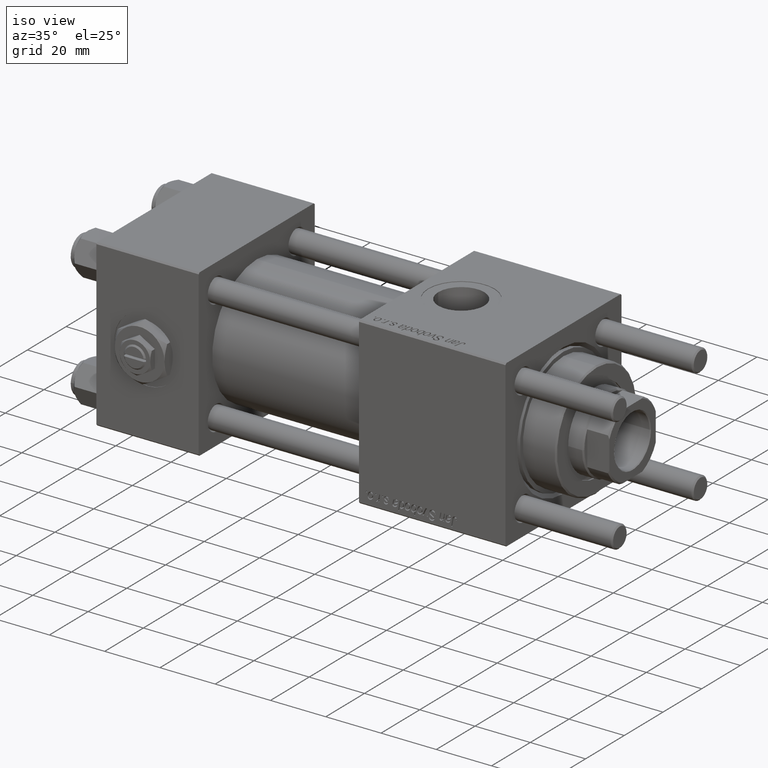
[diagram: clean part render]
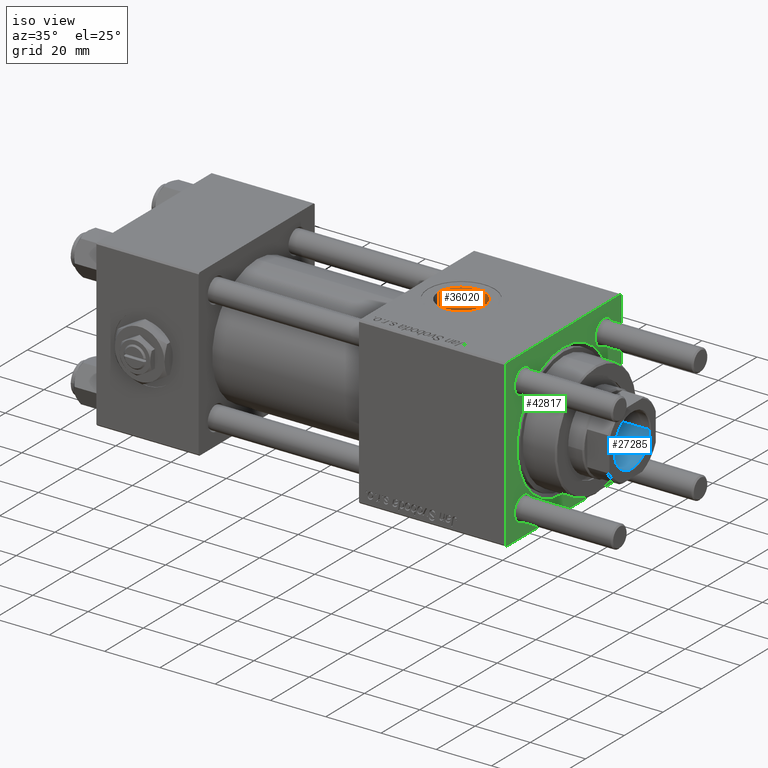
[diagram: same view with three faces highlighted in distinct colors, each labeled with its STEP entity id]
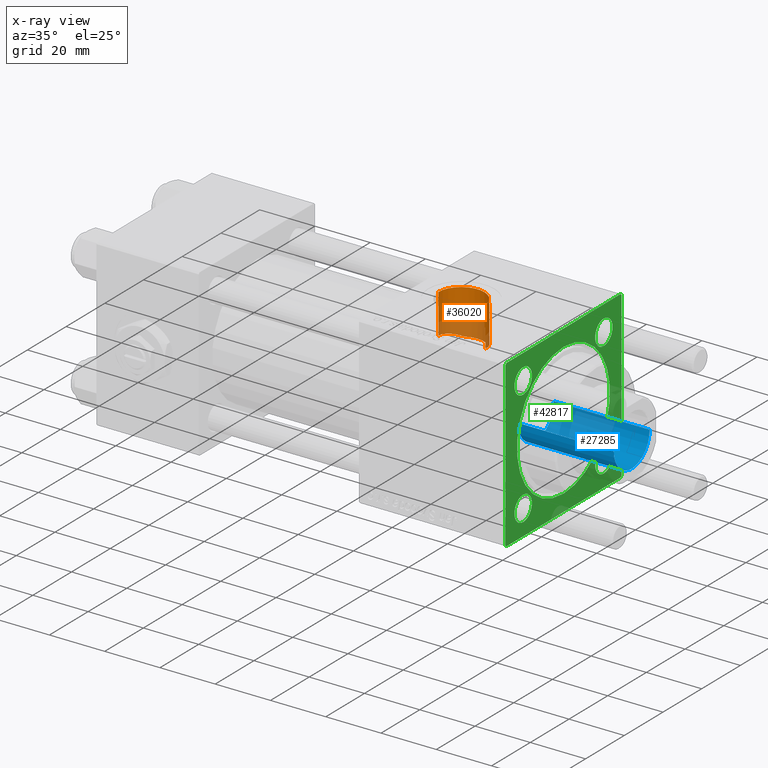
[diagram: x-ray of the same camera — body ghosted, the three highlighted faces saturated]
A machine part, iso view with three faces highlighted in distinct colors.
The next image is the same camera in x-ray (body ghosted, the three faces saturated) — at least one of them is partly hidden behind the body in this view.
Their STEP definitions:

[orange] entity #36020 — the highlighted cylindrical surface (edge-blend (fillet) strip) has radius 8.33 mm, axis along (0, 0, -1).
#128 = ORIENTED_EDGE ( 'NONE', *, *, #34558, .T. ) ;
#1865 = CARTESIAN_POINT ( 'NONE',  ( 103.2381405738433386, 3.047811366702672498, 15.20162253944664776 ) ) ;
#4041 = LINE ( 'NONE', #27521, #38784 ) ;
#5233 = CARTESIAN_POINT ( 'NONE',  ( 102.8890011916722216, 1.937150640225431042, 15.38313654488691284 ) ) ;
#6387 = LINE ( 'NONE', #19784, #10003 ) ;
#6674 = CARTESIAN_POINT ( 'NONE',  ( 102.6700000000000017, -3.469446951953613794E-15, 29.79999999999999716 ) ) ;
#6937 = CYLINDRICAL_SURFACE ( 'NONE', #35250, 8.330000000000003624 ) ;
#7400 = ORIENTED_EDGE ( 'NONE', *, *, #12505, .T. ) ;
#7505 = CARTESIAN_POINT ( 'NONE',  ( 104.3389503160342855, 5.060146834073014688, 14.66641001412193823 ) ) ;
#7909 = CARTESIAN_POINT ( 'NONE',  ( 115.9653705457623687, 6.724419165648845009, 13.97437896738289176 ) ) ;
#7979 = VERTEX_POINT ( 'NONE', #53596 ) ;
#8198 = CARTESIAN_POINT ( 'NONE',  ( 118.2534000047988201, 4.111271999610754513, 14.94835106229168176 ) ) ;
#8400 = VERTEX_POINT ( 'NONE', #32930 ) ;
#8486 = CARTESIAN_POINT ( 'NONE',  ( 118.7201712771788209, 3.148968827299039930, 15.18062598671783192 ) ) ;
#9775 = CARTESIAN_POINT ( 'NONE',  ( 102.6699999999996180, -2.713081726590588117E-14, 15.50000000000020428 ) ) ;
#10003 = VECTOR ( 'NONE', #37940, 1000.000000000000000 ) ;
#10063 = VERTEX_POINT ( 'NONE', #6674 ) ;
#11018 = DIRECTION ( 'NONE',  ( 0.000000000000000000, 0.000000000000000000, 1.000000000000000000 ) ) ;
#12505 = EDGE_CURVE ( 'NONE', #18631, #7979, #51632, .T. ) ;
#13952 = EDGE_LOOP ( 'NONE', ( #24610, #20647, #43249, #7400, #41176, #128, #32339, #32332 ) ) ;
#16294 = AXIS2_PLACEMENT_3D ( 'NONE', #44398, #53056, #35193 ) ;
#16744 = VERTEX_POINT ( 'NONE', #39771 ) ;
#16825 = CARTESIAN_POINT ( 'NONE',  ( 114.7548501967454939, 7.435724578008534813, 13.59999999999999076 ) ) ;
#17005 = CARTESIAN_POINT ( 'NONE',  ( 103.7310443908884849, 4.086272943823808568, 14.95550201764395837 ) ) ;
#17029 = EDGE_CURVE ( 'NONE', #10063, #18631, #6387, .T. ) ;
#17411 = CARTESIAN_POINT ( 'NONE',  ( 119.2378105529334107, 1.437110862293704328, 15.45056201154794806 ) ) ;
#18151 = EDGE_CURVE ( 'NONE', #26344, #35064, #20025, .T. ) ;
#18631 = VERTEX_POINT ( 'NONE', #9775 ) ;
#19784 = CARTESIAN_POINT ( 'NONE',  ( 102.6700000000000017, -3.469446951953613794E-15, 52.79999999999999716 ) ) ;
#19819 = EDGE_CURVE ( 'NONE', #28530, #7979, #55736, .T. ) ;
#20025 = LINE ( 'NONE', #51572, #30048 ) ;
#20647 = ORIENTED_EDGE ( 'NONE', *, *, #52566, .F. ) ;
#21044 = CARTESIAN_POINT ( 'NONE',  ( 119.2999999999999829, 0.7063285354565354002, 22.48891060056044466 ) ) ;
#21780 = CARTESIAN_POINT ( 'NONE',  ( 104.8202029067652745, 5.636575315625639071, 14.44950328828300279 ) ) ;
#21885 = CARTESIAN_POINT ( 'NONE',  ( 118.5762318573482190, 3.480672338514595232, 15.10763638059241742 ) ) ;
#23391 = CARTESIAN_POINT ( 'NONE',  ( 103.1053547801138848, 2.686155454129544484, 15.27016736770789862 ) ) ;
#23729 = CARTESIAN_POINT ( 'NONE',  ( 119.3200361445783102, 0.4708856903043578401, 22.49630535626710781 ) ) ;
#24396 = B_SPLINE_CURVE_WITH_KNOTS ( 'NONE', 3,
 ( #55878, #23729, #33226, #56482 ),
 .UNSPECIFIED., .F., .F.,
 ( 4, 4 ),
 ( 0.000000000000000000, 0.0007063285354565328363 ),
 .UNSPECIFIED. ) ;
#24610 = ORIENTED_EDGE ( 'NONE', *, *, #25623, .F. ) ;
#25380 = CARTESIAN_POINT ( 'NONE',  ( 103.5505958705756484, 3.747264868531968940, 15.04448363899141938 ) ) ;
#25623 = EDGE_CURVE ( 'NONE', #16744, #8400, #4041, .T. ) ;
#25666 = CARTESIAN_POINT ( 'NONE',  ( 105.6573382553999210, 6.402176101401404473, 14.11876137656380870 ) ) ;
#26066 = CARTESIAN_POINT ( 'NONE',  ( 115.3902205841902457, 7.114878828643538711, 13.77542063413991080 ) ) ;
#26344 = VERTEX_POINT ( 'NONE', #21044 ) ;
#26476 = B_SPLINE_CURVE_WITH_KNOTS ( 'NONE', 3,
 ( #16825, #26066, #7909, #40335, #53436, #34991, #30822, #48970, #8198, #21885, #8486, #40032, #17411, #35862 ),
 .UNSPECIFIED., .F., .F.,
 ( 4, 2, 2, 2, 2, 2, 4 ),
 ( 1.762687342693953287E-17, 0.002167183143396243707, 0.003250774715094356237, 0.004334366286792468333, 0.005417957858490579995, 0.006501549430188692524, 0.008668732573584917583 ),
 .UNSPECIFIED. ) ;
#27521 = CARTESIAN_POINT ( 'NONE',  ( 119.3300000000000125, -2.449316168263869032E-15, 52.79999999999999716 ) ) ;
#28530 = VERTEX_POINT ( 'NONE', #42710 ) ;
#29553 = CARTESIAN_POINT ( 'NONE',  ( 111.0000000000000000, -3.469446951953613794E-15, 52.79999999999999716 ) ) ;
#30048 = VECTOR ( 'NONE', #43515, 1000.000000000000000 ) ;
#30091 = AXIS2_PLACEMENT_3D ( 'NONE', #57959, #11018, #37807 ) ;
#30822 = CARTESIAN_POINT ( 'NONE',  ( 117.6798436837576389, 4.989036688639971295, 14.67824946145068310 ) ) ;
#31008 = CARTESIAN_POINT ( 'NONE',  ( 106.5763594891585910, 7.068460345354880658, 13.79652937211603003 ) ) ;
#32332 = ORIENTED_EDGE ( 'NONE', *, *, #43291, .T. ) ;
#32339 = ORIENTED_EDGE ( 'NONE', *, *, #18151, .F. ) ;
#32930 = CARTESIAN_POINT ( 'NONE',  ( 119.3300000000000125, 2.755455270027974659E-15, 22.50000000000000355 ) ) ;
#33226 = CARTESIAN_POINT ( 'NONE',  ( 119.3300000000000125, 0.2354428451521802246, 22.50000000000000355 ) ) ;
#33701 = CARTESIAN_POINT ( 'NONE',  ( 102.6699999999996180, -2.713081726590588117E-14, 15.50000000000020428 ) ) ;
#34558 = EDGE_CURVE ( 'NONE', #28530, #35064, #26476, .T. ) ;
#34991 = CARTESIAN_POINT ( 'NONE',  ( 117.4652904211442745, 5.264203456503698142, 14.58139219426319322 ) ) ;
#35064 = VERTEX_POINT ( 'NONE', #47359 ) ;
#35176 = CARTESIAN_POINT ( 'NONE',  ( 105.9544709984673005, 6.638852620574125396, 14.00831860901981685 ) ) ;
#35193 = DIRECTION ( 'NONE',  ( 1.000000000000000000, 0.000000000000000000, 0.000000000000000000 ) ) ;
#35250 = AXIS2_PLACEMENT_3D ( 'NONE', #29553, #47708, #42032 ) ;
#35862 = CARTESIAN_POINT ( 'NONE',  ( 119.2999999999999545, 0.7063285354568809016, 15.48389808801386103 ) ) ;
#36020 = ADVANCED_FACE ( 'NONE', ( #37594 ), #6937, .F. ) ;
#37594 = FACE_OUTER_BOUND ( 'NONE', #13952, .T. ) ;
#37807 = DIRECTION ( 'NONE',  ( 1.000000000000000000, 0.000000000000000000, 0.000000000000000000 ) ) ;
#37940 = DIRECTION ( 'NONE',  ( 0.000000000000000000, 0.000000000000000000, -1.000000000000000000 ) ) ;
#38784 = VECTOR ( 'NONE', #45378, 1000.000000000000000 ) ;
#39640 = CARTESIAN_POINT ( 'NONE',  ( 107.2451498032545061, 7.435724578008534813, 13.59999999999999076 ) ) ;
#39771 = CARTESIAN_POINT ( 'NONE',  ( 119.3300000000000125, -2.449316168263869821E-15, 29.79999999999999716 ) ) ;
#39924 = CARTESIAN_POINT ( 'NONE',  ( 106.9024469684808594, 7.262668436259995808, 13.69461748577755777 ) ) ;
#40032 = CARTESIAN_POINT ( 'NONE',  ( 119.0827063978108953, 2.138072539438088615, 15.36711703318994360 ) ) ;
#40335 = CARTESIAN_POINT ( 'NONE',  ( 116.7502179845312753, 6.036956813941138478, 14.27823247417040875 ) ) ;
#41176 = ORIENTED_EDGE ( 'NONE', *, *, #19819, .F. ) ;
#42032 = DIRECTION ( 'NONE',  ( -1.000000000000000000, 0.000000000000000000, 0.000000000000000000 ) ) ;
#42710 = CARTESIAN_POINT ( 'NONE',  ( 114.7548501967454939, 7.435724578008534813, 13.59999999999999076 ) ) ;
#43249 = ORIENTED_EDGE ( 'NONE', *, *, #17029, .T. ) ;
#43291 = EDGE_CURVE ( 'NONE', #26344, #8400, #24396, .T. ) ;
#43515 = DIRECTION ( 'NONE',  ( 0.000000000000000000, 0.000000000000000000, -1.000000000000000000 ) ) ;
#44398 = CARTESIAN_POINT ( 'NONE',  ( 111.0000000000000000, -3.469446951953613794E-15, 29.79999999999999716 ) ) ;
#45378 = DIRECTION ( 'NONE',  ( 0.000000000000000000, 0.000000000000000000, -1.000000000000000000 ) ) ;
#45996 = CARTESIAN_POINT ( 'NONE',  ( 102.6975598593861463, 0.7810156608275541368, 15.48513758060886225 ) ) ;
#47359 = CARTESIAN_POINT ( 'NONE',  ( 119.2999999999999545, 0.7063285354568809016, 15.48389808801386103 ) ) ;
#47708 = DIRECTION ( 'NONE',  ( 0.000000000000000000, 0.000000000000000000, -1.000000000000000000 ) ) ;
#48970 = CARTESIAN_POINT ( 'NONE',  ( 118.0738984406374072, 4.412568364522008402, 14.86172045093005423 ) ) ;
#51572 = CARTESIAN_POINT ( 'NONE',  ( 119.2999999999999829, 0.7063285354565354002, 52.79999999999999716 ) ) ;
#51632 = B_SPLINE_CURVE_WITH_KNOTS ( 'NONE', 3,
 ( #33701, #54942, #45996, #56351, #5233, #23391, #1865, #25380, #17005, #7505, #21780, #25666, #35176, #31008, #39924, #39640 ),
 .UNSPECIFIED., .F., .F.,
 ( 4, 2, 2, 2, 2, 2, 2, 4 ),
 ( 0.009374448786900189609, 0.01054305657029121907, 0.01171166435368224679, 0.01288027213707327798, 0.01404887992046430570, 0.01638609548724638543, 0.01755470327063740621, 0.01872331105402843393 ),
 .UNSPECIFIED. ) ;
#52566 = EDGE_CURVE ( 'NONE', #10063, #16744, #54318, .T. ) ;
#53056 = DIRECTION ( 'NONE',  ( -0.000000000000000000, -0.000000000000000000, -1.000000000000000000 ) ) ;
#53436 = CARTESIAN_POINT ( 'NONE',  ( 117.0000841562241334, 5.788852077867683299, 14.38116921446069618 ) ) ;
#53596 = CARTESIAN_POINT ( 'NONE',  ( 107.2451498032545061, 7.435724578008534813, 13.59999999999999076 ) ) ;
#54318 = CIRCLE ( 'NONE', #16294, 8.330000000000003624 ) ;
#54942 = CARTESIAN_POINT ( 'NONE',  ( 102.6699999999999591, 0.3922003781329697625, 15.50000000000000711 ) ) ;
#55736 = CIRCLE ( 'NONE', #30091, 8.330000000000003624 ) ;
#55878 = CARTESIAN_POINT ( 'NONE',  ( 119.2999999999999829, 0.7063285354565354002, 22.48891060056044466 ) ) ;
#56351 = CARTESIAN_POINT ( 'NONE',  ( 102.8066106803055249, 1.552053222944098865, 15.42694403133658909 ) ) ;
#56482 = CARTESIAN_POINT ( 'NONE',  ( 119.3300000000000125, 2.755455270027974659E-15, 22.50000000000000355 ) ) ;
#57959 = CARTESIAN_POINT ( 'NONE',  ( 111.0000000000000000, -3.469446951953613794E-15, 13.59999999999999076 ) ) ;

[blue] entity #27285 — the highlighted cylindrical surface (edge-blend (fillet) strip) has radius 9.25 mm, axis along (1, 0, 0).
#470 = CARTESIAN_POINT ( 'NONE',  ( -9.249999999999992895, 1.132798289211300712E-15, 101.0000000000000000 ) ) ;
#911 = ORIENTED_EDGE ( 'NONE', *, *, #40336, .T. ) ;
#3705 = CARTESIAN_POINT ( 'NONE',  ( -9.249999999999994671, 1.132798289211300909E-15, 136.0000000000000000 ) ) ;
#4386 = EDGE_CURVE ( 'NONE', #48442, #40108, #14503, .T. ) ;
#4524 = CARTESIAN_POINT ( 'NONE',  ( 9.249999999999994671, 0.000000000000000000, 136.0000000000000000 ) ) ;
#5033 = DIRECTION ( 'NONE',  ( 1.000000000000000000, 0.000000000000000000, 0.000000000000000000 ) ) ;
#6849 = CARTESIAN_POINT ( 'NONE',  ( 0.000000000000000000, 0.000000000000000000, 136.0000000000000000 ) ) ;
#7141 = DIRECTION ( 'NONE',  ( 1.000000000000000000, 0.000000000000000000, 0.000000000000000000 ) ) ;
#7788 = VECTOR ( 'NONE', #55401, 1000.000000000000000 ) ;
#13535 = AXIS2_PLACEMENT_3D ( 'NONE', #44015, #33612, #33916 ) ;
#14503 = CIRCLE ( 'NONE', #13535, 9.249999999999994671 ) ;
#20266 = EDGE_CURVE ( 'NONE', #22980, #40108, #44463, .T. ) ;
#20602 = VECTOR ( 'NONE', #21860, 1000.000000000000000 ) ;
#21860 = DIRECTION ( 'NONE',  ( -0.000000000000000000, -0.000000000000000000, 1.000000000000000000 ) ) ;
#22019 = DIRECTION ( 'NONE',  ( -0.000000000000000000, -0.000000000000000000, 1.000000000000000000 ) ) ;
#22980 = VERTEX_POINT ( 'NONE', #470 ) ;
#23616 = CARTESIAN_POINT ( 'NONE',  ( -9.249999999999994671, 1.132798289211300909E-15, 135.7000000000000455 ) ) ;
#27285 = ADVANCED_FACE ( 'NONE', ( #52083 ), #47621, .F. ) ;
#29124 = ORIENTED_EDGE ( 'NONE', *, *, #4386, .T. ) ;
#29286 = CARTESIAN_POINT ( 'NONE',  ( 9.249999999999994671, 0.000000000000000000, 135.7000000000000455 ) ) ;
#30514 = ORIENTED_EDGE ( 'NONE', *, *, #20266, .F. ) ;
#31811 = ORIENTED_EDGE ( 'NONE', *, *, #52767, .F. ) ;
#33612 = DIRECTION ( 'NONE',  ( 0.000000000000000000, 0.000000000000000000, 1.000000000000000000 ) ) ;
#33916 = DIRECTION ( 'NONE',  ( 1.000000000000000000, 0.000000000000000000, 0.000000000000000000 ) ) ;
#40108 = VERTEX_POINT ( 'NONE', #23616 ) ;
#40336 = EDGE_CURVE ( 'NONE', #45299, #48442, #41395, .T. ) ;
#41395 = LINE ( 'NONE', #4524, #7788 ) ;
#44015 = CARTESIAN_POINT ( 'NONE',  ( 0.000000000000000000, 0.000000000000000000, 135.7000000000000455 ) ) ;
#44463 = LINE ( 'NONE', #3705, #20602 ) ;
#44922 = CARTESIAN_POINT ( 'NONE',  ( 0.000000000000000000, 0.000000000000000000, 101.0000000000000000 ) ) ;
#45299 = VERTEX_POINT ( 'NONE', #50393 ) ;
#45770 = AXIS2_PLACEMENT_3D ( 'NONE', #44922, #22019, #5033 ) ;
#46702 = CIRCLE ( 'NONE', #45770, 9.249999999999992895 ) ;
#47621 = CYLINDRICAL_SURFACE ( 'NONE', #53142, 9.249999999999994671 ) ;
#47919 = DIRECTION ( 'NONE',  ( -0.000000000000000000, -0.000000000000000000, 1.000000000000000000 ) ) ;
#48442 = VERTEX_POINT ( 'NONE', #29286 ) ;
#50393 = CARTESIAN_POINT ( 'NONE',  ( 9.249999999999992895, 0.000000000000000000, 101.0000000000000000 ) ) ;
#52083 = FACE_OUTER_BOUND ( 'NONE', #58730, .T. ) ;
#52767 = EDGE_CURVE ( 'NONE', #45299, #22980, #46702, .T. ) ;
#53142 = AXIS2_PLACEMENT_3D ( 'NONE', #6849, #47919, #7141 ) ;
#55401 = DIRECTION ( 'NONE',  ( -0.000000000000000000, -0.000000000000000000, 1.000000000000000000 ) ) ;
#58730 = EDGE_LOOP ( 'NONE', ( #30514, #31811, #911, #29124 ) ) ;

[green] entity #42817 — the highlighted planar face has unit normal (-1, 0, 0).
#147 = CARTESIAN_POINT ( 'NONE',  ( 148.0000000000000000, 20.84999999999999787, -20.85000000000000142 ) ) ;
#537 = ORIENTED_EDGE ( 'NONE', *, *, #40273, .T. ) ;
#578 = ORIENTED_EDGE ( 'NONE', *, *, #12198, .T. ) ;
#679 = CARTESIAN_POINT ( 'NONE',  ( 148.0000000000000000, 30.00000000000000000, 29.50000000000000000 ) ) ;
#949 = AXIS2_PLACEMENT_3D ( 'NONE', #46760, #56012, #6588 ) ;
#1952 = EDGE_LOOP ( 'NONE', ( #28750, #537 ) ) ;
#2432 = DIRECTION ( 'NONE',  ( -1.000000000000000000, 0.000000000000000000, -0.000000000000000000 ) ) ;
#2723 = LINE ( 'NONE', #47670, #33268 ) ;
#3638 = VERTEX_POINT ( 'NONE', #17505 ) ;
#4303 = AXIS2_PLACEMENT_3D ( 'NONE', #32738, #10712, #50903 ) ;
#4760 = EDGE_LOOP ( 'NONE', ( #45176, #44632 ) ) ;
#5013 = CARTESIAN_POINT ( 'NONE',  ( 148.0000000000000000, 29.50000000000000000, -29.99999999999999289 ) ) ;
#5178 = DIRECTION ( 'NONE',  ( 0.000000000000000000, 0.000000000000000000, 1.000000000000000000 ) ) ;
#6168 = CARTESIAN_POINT ( 'NONE',  ( 148.0000000000000000, -20.84999999999999076, -16.34999999999998721 ) ) ;
#6179 = LINE ( 'NONE', #56190, #10957 ) ;
#6391 = EDGE_CURVE ( 'NONE', #50319, #58861, #6425, .T. ) ;
#6425 = LINE ( 'NONE', #14467, #17399 ) ;
#6588 = DIRECTION ( 'NONE',  ( 0.000000000000000000, 0.000000000000000000, 1.000000000000000000 ) ) ;
#7264 = CIRCLE ( 'NONE', #40516, 4.500000000000017764 ) ;
#7465 = ORIENTED_EDGE ( 'NONE', *, *, #30118, .T. ) ;
#7987 = CARTESIAN_POINT ( 'NONE',  ( 148.0000000000000000, -30.00000000000000000, -29.49999999999998579 ) ) ;
#8118 = AXIS2_PLACEMENT_3D ( 'NONE', #42085, #20677, #56711 ) ;
#8385 = VERTEX_POINT ( 'NONE', #33214 ) ;
#8915 = EDGE_LOOP ( 'NONE', ( #15785, #53788 ) ) ;
#9113 = LINE ( 'NONE', #49883, #24503 ) ;
#9235 = EDGE_CURVE ( 'NONE', #23411, #37978, #13844, .T. ) ;
#10049 = DIRECTION ( 'NONE',  ( 0.000000000000000000, -0.7071067811865474617, 0.7071067811865474617 ) ) ;
#10060 = EDGE_CURVE ( 'NONE', #8385, #36320, #27153, .T. ) ;
#10712 = DIRECTION ( 'NONE',  ( -1.000000000000000000, 0.000000000000000000, -0.000000000000000000 ) ) ;
#10957 = VECTOR ( 'NONE', #10049, 1000.000000000000114 ) ;
#11241 = EDGE_CURVE ( 'NONE', #45009, #34938, #33767, .T. ) ;
#11726 = EDGE_CURVE ( 'NONE', #36320, #8385, #56613, .T. ) ;
#12198 = EDGE_CURVE ( 'NONE', #50319, #3638, #6179, .T. ) ;
#12542 = PLANE ( 'NONE',  #55420 ) ;
#12815 = CARTESIAN_POINT ( 'NONE',  ( 148.0000000000000000, -29.50000000000000000, 29.99999999999999289 ) ) ;
#13193 = AXIS2_PLACEMENT_3D ( 'NONE', #43190, #2432, #38733 ) ;
#13840 = VERTEX_POINT ( 'NONE', #7987 ) ;
#13844 = CIRCLE ( 'NONE', #30945, 4.500000000000017764 ) ;
#13981 = CARTESIAN_POINT ( 'NONE',  ( 148.0000000000000000, 30.00000000000000000, -29.49999999999999289 ) ) ;
#14322 = CARTESIAN_POINT ( 'NONE',  ( 148.0000000000000000, -20.84999999999999076, 16.34999999999998721 ) ) ;
#14467 = CARTESIAN_POINT ( 'NONE',  ( 148.0000000000000000, 30.00000000000000000, 30.00000000000000000 ) ) ;
#15785 = ORIENTED_EDGE ( 'NONE', *, *, #11726, .T. ) ;
#16088 = VECTOR ( 'NONE', #46403, 1000.000000000000114 ) ;
#16672 = DIRECTION ( 'NONE',  ( 0.000000000000000000, -1.000000000000000000, -1.156482317317871478E-16 ) ) ;
#16714 = FACE_BOUND ( 'NONE', #4760, .T. ) ;
#17399 = VECTOR ( 'NONE', #51967, 1000.000000000000000 ) ;
#17505 = CARTESIAN_POINT ( 'NONE',  ( 148.0000000000000000, 29.50000000000000000, 30.00000000000000000 ) ) ;
#17860 = LINE ( 'NONE', #31549, #55946 ) ;
#18484 = LINE ( 'NONE', #36645, #53475 ) ;
#18874 = DIRECTION ( 'NONE',  ( -1.000000000000000000, 0.000000000000000000, -0.000000000000000000 ) ) ;
#19681 = ORIENTED_EDGE ( 'NONE', *, *, #55127, .T. ) ;
#19695 = EDGE_CURVE ( 'NONE', #50132, #36009, #7264, .T. ) ;
#20289 = CARTESIAN_POINT ( 'NONE',  ( 148.0000000000000000, -29.50000000000000000, -30.00000000000000000 ) ) ;
#20348 = EDGE_CURVE ( 'NONE', #36009, #50132, #43405, .T. ) ;
#20645 = CARTESIAN_POINT ( 'NONE',  ( 148.0000000000000000, 20.84999999999999787, -16.34999999999998366 ) ) ;
#20677 = DIRECTION ( 'NONE',  ( -1.000000000000000000, 0.000000000000000000, -0.000000000000000000 ) ) ;
#21286 = CARTESIAN_POINT ( 'NONE',  ( 148.0000000000000000, 30.00000000000000000, -29.49999999999997868 ) ) ;
#21356 = EDGE_CURVE ( 'NONE', #38885, #27515, #37824, .T. ) ;
#22215 = CARTESIAN_POINT ( 'NONE',  ( 148.0000000000000000, -30.00000000000000000, 29.49999999999999289 ) ) ;
#22648 = CARTESIAN_POINT ( 'NONE',  ( 148.0000000000000000, -20.84999999999999076, -20.85000000000000497 ) ) ;
#22957 = EDGE_CURVE ( 'NONE', #24883, #42342, #9113, .T. ) ;
#23411 = VERTEX_POINT ( 'NONE', #49741 ) ;
#23906 = CARTESIAN_POINT ( 'NONE',  ( 148.0000000000000000, 2.939152317953652628E-15, 24.00000000000003908 ) ) ;
#24213 = VERTEX_POINT ( 'NONE', #23906 ) ;
#24306 = AXIS2_PLACEMENT_3D ( 'NONE', #29296, #47447, #56990 ) ;
#24503 = VECTOR ( 'NONE', #45401, 1000.000000000000114 ) ;
#24724 = CARTESIAN_POINT ( 'NONE',  ( 148.0000000000000000, 20.84999999999999787, 16.34999999999998366 ) ) ;
#24883 = VERTEX_POINT ( 'NONE', #12815 ) ;
#25367 = FACE_BOUND ( 'NONE', #58335, .T. ) ;
#27153 = CIRCLE ( 'NONE', #24306, 4.500000000000017764 ) ;
#27515 = VERTEX_POINT ( 'NONE', #20289 ) ;
#27581 = EDGE_CURVE ( 'NONE', #52105, #24213, #52202, .T. ) ;
#27799 = AXIS2_PLACEMENT_3D ( 'NONE', #41178, #37014, #5178 ) ;
#28174 = EDGE_LOOP ( 'NONE', ( #34555, #7465, #55884, #53283, #43753, #578, #19681, #44394 ) ) ;
#28750 = ORIENTED_EDGE ( 'NONE', *, *, #27581, .T. ) ;
#29296 = CARTESIAN_POINT ( 'NONE',  ( 148.0000000000000000, 20.84999999999999787, 20.85000000000000142 ) ) ;
#30118 = EDGE_CURVE ( 'NONE', #13840, #27515, #17860, .T. ) ;
#30127 = AXIS2_PLACEMENT_3D ( 'NONE', #42923, #53045, #33705 ) ;
#30128 = FACE_BOUND ( 'NONE', #1952, .T. ) ;
#30449 = CIRCLE ( 'NONE', #949, 4.500000000000017764 ) ;
#30807 = CARTESIAN_POINT ( 'NONE',  ( 148.0000000000000000, 0.000000000000000000, -24.00000000000003908 ) ) ;
#30945 = AXIS2_PLACEMENT_3D ( 'NONE', #147, #18874, #50145 ) ;
#31549 = CARTESIAN_POINT ( 'NONE',  ( 148.0000000000000000, -29.50000000000000000, -30.00000000000000000 ) ) ;
#32738 = CARTESIAN_POINT ( 'NONE',  ( 148.0000000000000000, 20.84999999999999787, 20.85000000000000142 ) ) ;
#33098 = ORIENTED_EDGE ( 'NONE', *, *, #11241, .T. ) ;
#33214 = CARTESIAN_POINT ( 'NONE',  ( 148.0000000000000000, 20.84999999999999787, 25.35000000000001918 ) ) ;
#33268 = VECTOR ( 'NONE', #42587, 1000.000000000000000 ) ;
#33301 = LINE ( 'NONE', #13981, #16088 ) ;
#33704 = EDGE_LOOP ( 'NONE', ( #46335, #36293 ) ) ;
#33705 = DIRECTION ( 'NONE',  ( 0.000000000000000000, 0.000000000000000000, 1.000000000000000000 ) ) ;
#33767 = CIRCLE ( 'NONE', #8118, 4.500000000000017764 ) ;
#33986 = FACE_OUTER_BOUND ( 'NONE', #28174, .T. ) ;
#34555 = ORIENTED_EDGE ( 'NONE', *, *, #48741, .T. ) ;
#34591 = DIRECTION ( 'NONE',  ( -1.000000000000000000, 0.000000000000000000, -0.000000000000000000 ) ) ;
#34938 = VERTEX_POINT ( 'NONE', #14322 ) ;
#35084 = EDGE_CURVE ( 'NONE', #34938, #45009, #30449, .T. ) ;
#35372 = AXIS2_PLACEMENT_3D ( 'NONE', #47411, #38490, #57258 ) ;
#36009 = VERTEX_POINT ( 'NONE', #52167 ) ;
#36293 = ORIENTED_EDGE ( 'NONE', *, *, #55645, .T. ) ;
#36320 = VERTEX_POINT ( 'NONE', #24724 ) ;
#36645 = CARTESIAN_POINT ( 'NONE',  ( 148.0000000000000000, 30.00000000000000000, 30.00000000000000000 ) ) ;
#37014 = DIRECTION ( 'NONE',  ( -1.000000000000000000, 0.000000000000000000, -0.000000000000000000 ) ) ;
#37824 = LINE ( 'NONE', #48228, #48173 ) ;
#37978 = VERTEX_POINT ( 'NONE', #20645 ) ;
#38490 = DIRECTION ( 'NONE',  ( -1.000000000000000000, 0.000000000000000000, -0.000000000000000000 ) ) ;
#38733 = DIRECTION ( 'NONE',  ( 0.000000000000000000, 0.000000000000000000, 1.000000000000000000 ) ) ;
#38885 = VERTEX_POINT ( 'NONE', #5013 ) ;
#38988 = CARTESIAN_POINT ( 'NONE',  ( 148.0000000000000000, -20.84999999999999076, 25.35000000000002274 ) ) ;
#39629 = DIRECTION ( 'NONE',  ( -0.000000000000000000, 0.000000000000000000, 1.000000000000000000 ) ) ;
#40273 = EDGE_CURVE ( 'NONE', #24213, #52105, #44874, .T. ) ;
#40516 = AXIS2_PLACEMENT_3D ( 'NONE', #22648, #46420, #54789 ) ;
#41178 = CARTESIAN_POINT ( 'NONE',  ( 148.0000000000000000, 20.84999999999999787, -20.85000000000000142 ) ) ;
#42085 = CARTESIAN_POINT ( 'NONE',  ( 148.0000000000000000, -20.84999999999999076, 20.85000000000000497 ) ) ;
#42342 = VERTEX_POINT ( 'NONE', #22215 ) ;
#42587 = DIRECTION ( 'NONE',  ( 0.000000000000000000, 0.000000000000000000, -1.000000000000000000 ) ) ;
#42817 = ADVANCED_FACE ( 'NONE', ( #16714, #57227, #56636, #25367, #30128, #33986 ), #12542, .F. ) ;
#42923 = CARTESIAN_POINT ( 'NONE',  ( 148.0000000000000000, -20.84999999999999076, -20.85000000000000497 ) ) ;
#43190 = CARTESIAN_POINT ( 'NONE',  ( 148.0000000000000000, 0.000000000000000000, 0.000000000000000000 ) ) ;
#43405 = CIRCLE ( 'NONE', #30127, 4.500000000000017764 ) ;
#43753 = ORIENTED_EDGE ( 'NONE', *, *, #6391, .F. ) ;
#44372 = CARTESIAN_POINT ( 'NONE',  ( 148.0000000000000000, 0.000000000000000000, 0.000000000000000000 ) ) ;
#44394 = ORIENTED_EDGE ( 'NONE', *, *, #22957, .T. ) ;
#44632 = ORIENTED_EDGE ( 'NONE', *, *, #19695, .T. ) ;
#44874 = CIRCLE ( 'NONE', #35372, 24.00000000000003908 ) ;
#45009 = VERTEX_POINT ( 'NONE', #38988 ) ;
#45176 = ORIENTED_EDGE ( 'NONE', *, *, #20348, .T. ) ;
#45401 = DIRECTION ( 'NONE',  ( -0.000000000000000000, -0.7071067811865474617, -0.7071067811865474617 ) ) ;
#46113 = EDGE_CURVE ( 'NONE', #38885, #58861, #33301, .T. ) ;
#46335 = ORIENTED_EDGE ( 'NONE', *, *, #9235, .T. ) ;
#46403 = DIRECTION ( 'NONE',  ( -0.000000000000000000, 0.7071067811865474617, 0.7071067811865474617 ) ) ;
#46420 = DIRECTION ( 'NONE',  ( -1.000000000000000000, 0.000000000000000000, -0.000000000000000000 ) ) ;
#46760 = CARTESIAN_POINT ( 'NONE',  ( 148.0000000000000000, -20.84999999999999076, 20.85000000000000497 ) ) ;
#47411 = CARTESIAN_POINT ( 'NONE',  ( 148.0000000000000000, 0.000000000000000000, 0.000000000000000000 ) ) ;
#47447 = DIRECTION ( 'NONE',  ( -1.000000000000000000, 0.000000000000000000, -0.000000000000000000 ) ) ;
#47670 = CARTESIAN_POINT ( 'NONE',  ( 148.0000000000000000, -30.00000000000000000, 29.99999999999999289 ) ) ;
#48173 = VECTOR ( 'NONE', #16672, 1000.000000000000000 ) ;
#48228 = CARTESIAN_POINT ( 'NONE',  ( 148.0000000000000000, 30.00000000000000000, -29.99999999999999289 ) ) ;
#48741 = EDGE_CURVE ( 'NONE', #42342, #13840, #2723, .T. ) ;
#48837 = DIRECTION ( 'NONE',  ( 0.000000000000000000, 0.7071067811865474617, -0.7071067811865474617 ) ) ;
#49707 = ORIENTED_EDGE ( 'NONE', *, *, #35084, .T. ) ;
#49741 = CARTESIAN_POINT ( 'NONE',  ( 148.0000000000000000, 20.84999999999999787, -25.35000000000001918 ) ) ;
#49883 = CARTESIAN_POINT ( 'NONE',  ( 148.0000000000000000, -30.00000000000000000, 29.49999999999999289 ) ) ;
#50132 = VERTEX_POINT ( 'NONE', #6168 ) ;
#50145 = DIRECTION ( 'NONE',  ( 0.000000000000000000, 0.000000000000000000, 1.000000000000000000 ) ) ;
#50319 = VERTEX_POINT ( 'NONE', #679 ) ;
#50903 = DIRECTION ( 'NONE',  ( 0.000000000000000000, 0.000000000000000000, 1.000000000000000000 ) ) ;
#51967 = DIRECTION ( 'NONE',  ( 0.000000000000000000, 0.000000000000000000, -1.000000000000000000 ) ) ;
#52105 = VERTEX_POINT ( 'NONE', #30807 ) ;
#52167 = CARTESIAN_POINT ( 'NONE',  ( 148.0000000000000000, -20.84999999999999076, -25.35000000000002274 ) ) ;
#52202 = CIRCLE ( 'NONE', #13193, 24.00000000000003908 ) ;
#53045 = DIRECTION ( 'NONE',  ( -1.000000000000000000, 0.000000000000000000, -0.000000000000000000 ) ) ;
#53283 = ORIENTED_EDGE ( 'NONE', *, *, #46113, .T. ) ;
#53475 = VECTOR ( 'NONE', #58406, 1000.000000000000000 ) ;
#53788 = ORIENTED_EDGE ( 'NONE', *, *, #10060, .T. ) ;
#54410 = CIRCLE ( 'NONE', #27799, 4.500000000000017764 ) ;
#54789 = DIRECTION ( 'NONE',  ( 0.000000000000000000, 0.000000000000000000, 1.000000000000000000 ) ) ;
#55127 = EDGE_CURVE ( 'NONE', #3638, #24883, #18484, .T. ) ;
#55420 = AXIS2_PLACEMENT_3D ( 'NONE', #44372, #34591, #39629 ) ;
#55645 = EDGE_CURVE ( 'NONE', #37978, #23411, #54410, .T. ) ;
#55884 = ORIENTED_EDGE ( 'NONE', *, *, #21356, .F. ) ;
#55946 = VECTOR ( 'NONE', #48837, 1000.000000000000114 ) ;
#56012 = DIRECTION ( 'NONE',  ( -1.000000000000000000, 0.000000000000000000, -0.000000000000000000 ) ) ;
#56190 = CARTESIAN_POINT ( 'NONE',  ( 148.0000000000000000, 29.50000000000000000, 30.00000000000000000 ) ) ;
#56613 = CIRCLE ( 'NONE', #4303, 4.500000000000017764 ) ;
#56636 = FACE_BOUND ( 'NONE', #8915, .T. ) ;
#56711 = DIRECTION ( 'NONE',  ( 0.000000000000000000, 0.000000000000000000, 1.000000000000000000 ) ) ;
#56990 = DIRECTION ( 'NONE',  ( 0.000000000000000000, 0.000000000000000000, 1.000000000000000000 ) ) ;
#57227 = FACE_BOUND ( 'NONE', #33704, .T. ) ;
#57258 = DIRECTION ( 'NONE',  ( 0.000000000000000000, 0.000000000000000000, 1.000000000000000000 ) ) ;
#58335 = EDGE_LOOP ( 'NONE', ( #49707, #33098 ) ) ;
#58406 = DIRECTION ( 'NONE',  ( 0.000000000000000000, -1.000000000000000000, -1.156482317317871478E-16 ) ) ;
#58861 = VERTEX_POINT ( 'NONE', #21286 ) ;